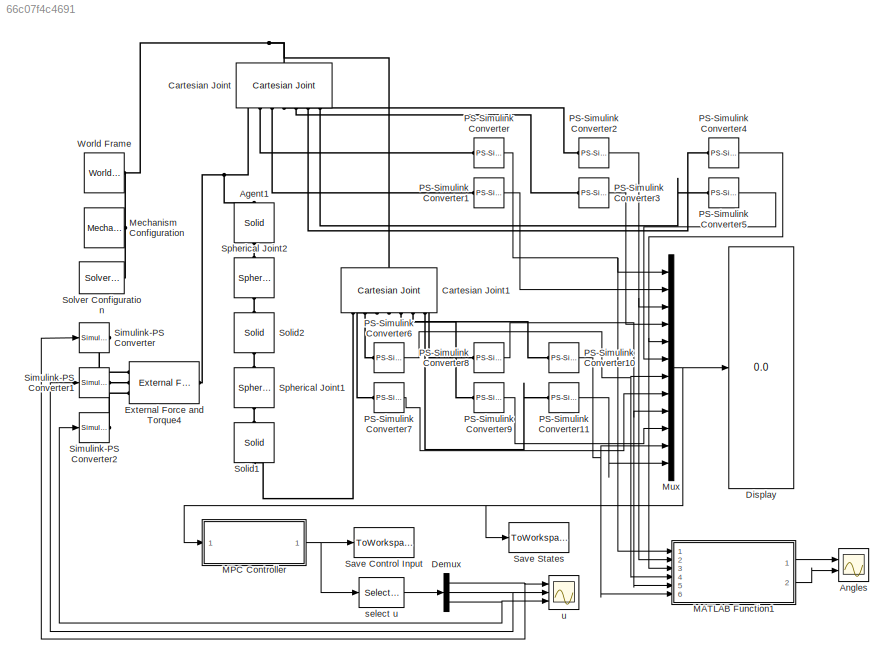
MODEL slx_66c07f4c4691
KIND model
CONFIG AbsTol = auto
CONFIG EnableMultiTasking = off
CONFIG FixedStep = tstep
CONFIG InitFcn = initMAX;
CONFIG MaxStep = auto
CONFIG MinStep = auto
CONFIG RelTol = 1e-3
CONFIG SampleTimeConstraint = Unconstrained
CONFIG Solver = ode23t
CONFIG SolverName = ode23t
CONFIG StartTime = 0.0
CONFIG StopFcn = plotMAX;
CONFIG StopTime = 5
BLOCK [Reference] Agent1  REF=sm_lib/Body Elements/Solid
  Ports = [0, 0, 0, 0, 0, 1, 1]
  SourceBlock = sm_lib/Body Elements/Solid
  SourceProductBaseCode = MS
  SourceProductName = Simscape Multibody
  SourceType = Solid
BLOCK [Scope] Angles
  NumInputPorts = 2
  Ports = [2]
  ScopeSpecificationString = Simulink.scopes.TimeScopeBlockCfg('CurrentConfiguration', extmgr.ConfigurationSet(extmgr.Configuration('Core','General UI',true),extmgr.Configuration('Core','Source UI',true),extmgr.Configuration('Sources','WiredSimulink',true,'DataLoggingVariableName','ScopeData1'),extmgr.Configuration('Visuals','Time Domain',true),extmgr.Configuration('Tools','Plot Navigation',true),extmgr.Configuration('Tools',...<+40ch>
BLOCK [Reference] Cartesian Joint  REF=sm_lib/Joints/Cartesian
Joint
  Ports = [0, 0, 0, 0, 0, 1, 7]
  SourceBlock = sm_lib/Joints/Cartesian\nJoint
  SourceProductBaseCode = MS
  SourceProductName = Simscape Multibody
  SourceType = Cartesian\nJoint
BLOCK [Reference] Cartesian Joint1  REF=sm_lib/Joints/Cartesian
Joint
  Ports = [0, 0, 0, 0, 0, 1, 7]
  SourceBlock = sm_lib/Joints/Cartesian\nJoint
  SourceProductBaseCode = MS
  SourceProductName = Simscape Multibody
  SourceType = Cartesian\nJoint
BLOCK [Demux] Demux
  DisplayOption = bar
  Outputs = 3
  Ports = [1, 3]
BLOCK [Display] Display
  Decimation = 1
  Ports = [1]
BLOCK [Reference] External Force and Torque4  REF=sm_lib/Forces and
Torques/External Force
and Torque
  Ports = [0, 0, 0, 0, 0, 3, 1]
  SourceBlock = sm_lib/Forces and\nTorques/External Force\nand Torque
  SourceProductBaseCode = MS
  SourceProductName = Simscape Multibody
  SourceType = External Force\nand Torque
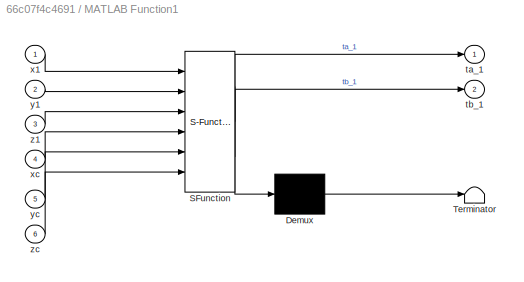
BLOCK [SubSystem] MATLAB Function1
  ErrorFcn = Stateflow.Translate.translate
  PermitHierarchicalResolution = ExplicitOnly
  Ports = [6, 2]
  RequestExecContextInheritance = off
  SFBlockType = MATLAB Function
  TreatAsAtomicUnit = on
  Variant = off
BLOCK [Demux] MATLAB Function1/ Demux 
  Outputs = 1
  Ports = [1, 1]
BLOCK [S-Function] MATLAB Function1/ SFunction 
  EnableBusSupport = on
  FunctionName = sf_sfun
  PortCounts = [6 3]
  Ports = [6, 3]
  SFcnIsStateOwnerBlock = off
  SFunctionDeploymentMode = off
  Tag = Stateflow S-Function MAXwSimscape 4
BLOCK [Terminator] MATLAB Function1/ Terminator 
BLOCK [Outport] MATLAB Function1/ta_1
  IconDisplay = Port number
BLOCK [Outport] MATLAB Function1/tb_1
  IconDisplay = Port number
  Port = 2
BLOCK [Inport] MATLAB Function1/x1
  IconDisplay = Port number
BLOCK [Inport] MATLAB Function1/xc
  IconDisplay = Port number
  Port = 4
BLOCK [Inport] MATLAB Function1/y1
  IconDisplay = Port number
  Port = 2
BLOCK [Inport] MATLAB Function1/yc
  IconDisplay = Port number
  Port = 5
BLOCK [Inport] MATLAB Function1/z1
  IconDisplay = Port number
  Port = 3
BLOCK [Inport] MATLAB Function1/zc
  IconDisplay = Port number
  Port = 6
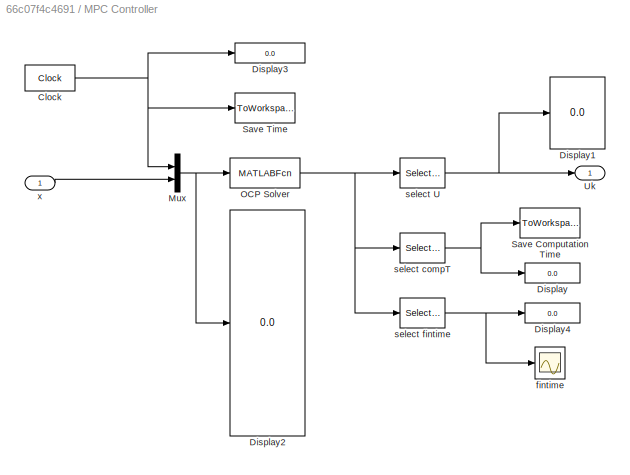
BLOCK [SubSystem] MPC Controller 
  Ports = [1, 1]
  RequestExecContextInheritance = off
  Variant = off
BLOCK [Clock] MPC Controller /Clock
  DisplayTime = on
BLOCK [Display] MPC Controller /Display
  Decimation = 1
  Ports = [1]
BLOCK [Display] MPC Controller /Display1
  Decimation = 1
  Ports = [1]
BLOCK [Display] MPC Controller /Display2
  Decimation = 1
  Ports = [1]
BLOCK [Display] MPC Controller /Display3
  Decimation = 1
  Ports = [1]
BLOCK [Display] MPC Controller /Display4
  Decimation = 1
  Ports = [1]
BLOCK [Mux] MPC Controller /Mux
  DisplayOption = bar
  Inputs = 2
  Ports = [2, 1]
BLOCK [MATLABFcn] MPC Controller /OCP Solver
  MATLABFcn = MAXSolver
  OutputDimensions = m+2
  Ports = [1, 1]
BLOCK [ToWorkspace] MPC Controller /Save Computation Time 
  FixptAsFi = on
  MaxDataPoints = inf
  Ports = [1]
  SampleTime = tstep
  Save2DSignal = 2-D array (concatenate along first dimension)
  VariableName = Comp_Time
BLOCK [ToWorkspace] MPC Controller /Save Time
  FixptAsFi = on
  MaxDataPoints = inf
  Ports = [1]
  SampleTime = -1
  Save2DSignal = 2-D array (concatenate along first dimension)
  VariableName = T
BLOCK [Outport] MPC Controller /Uk
  IconDisplay = Port number
BLOCK [Scope] MPC Controller /fintime
  NumInputPorts = 1
  Ports = [1]
  ScopeSpecificationString = Simulink.scopes.TimeScopeBlockCfg('CurrentConfiguration', extmgr.ConfigurationSet(extmgr.Configuration('Core','General UI',true),extmgr.Configuration('Core','Source UI',true),extmgr.Configuration('Sources','WiredSimulink',true,'DataLoggingVariableName','ScopeData1'),extmgr.Configuration('Visuals','Time Domain',true),extmgr.Configuration('Tools','Plot Navigation',true),extmgr.Configuration('Tools',...<+40ch>
BLOCK [Selector] MPC Controller /select U
  IndexOptions = Index vector (dialog)
  Indices = 3:m+2
  OutputSizes = 1
  Ports = [1, 1]
BLOCK [Selector] MPC Controller /select compT
  IndexOptions = Index vector (dialog)
  Indices = 2
  OutputSizes = 1
  Ports = [1, 1]
BLOCK [Selector] MPC Controller /select fintime
  IndexOptions = Index vector (dialog)
  Indices = 1
  OutputSizes = 1
  Ports = [1, 1]
BLOCK [Inport] MPC Controller /x
  IconDisplay = Port number
BLOCK [Reference] Mechanism Configuration  REF=sm_lib/Utilities/Mechanism
Configuration
  Ports = [0, 0, 0, 0, 0, 0, 1]
  SourceBlock = sm_lib/Utilities/Mechanism\nConfiguration
  SourceProductBaseCode = MS
  SourceProductName = Simscape Multibody
  SourceType = Mechanism\nConfiguration
BLOCK [Mux] Mux
  DisplayOption = bar
  Inputs = 12
  Ports = [12, 1]
BLOCK [Reference] PS-Simulink Converter  REF=nesl_utility/PS-Simulink
Converter
  Ports = [0, 1, 0, 0, 0, 1]
  SourceBlock = nesl_utility/PS-Simulink\nConverter
  SourceProductBaseCode = SS
  SourceProductName = Simscape
  SourceType = PS-Simulink\nConverter
BLOCK [Reference] PS-Simulink Converter1  REF=nesl_utility/PS-Simulink
Converter
  Ports = [0, 1, 0, 0, 0, 1]
  SourceBlock = nesl_utility/PS-Simulink\nConverter
  SourceProductBaseCode = SS
  SourceProductName = Simscape
  SourceType = PS-Simulink\nConverter
BLOCK [Reference] PS-Simulink Converter10  REF=nesl_utility/PS-Simulink
Converter
  Ports = [0, 1, 0, 0, 0, 1]
  SourceBlock = nesl_utility/PS-Simulink\nConverter
  SourceProductBaseCode = SS
  SourceProductName = Simscape
  SourceType = PS-Simulink\nConverter
BLOCK [Reference] PS-Simulink Converter11  REF=nesl_utility/PS-Simulink
Converter
  Ports = [0, 1, 0, 0, 0, 1]
  SourceBlock = nesl_utility/PS-Simulink\nConverter
  SourceProductBaseCode = SS
  SourceProductName = Simscape
  SourceType = PS-Simulink\nConverter
BLOCK [Reference] PS-Simulink Converter2  REF=nesl_utility/PS-Simulink
Converter
  Ports = [0, 1, 0, 0, 0, 1]
  SourceBlock = nesl_utility/PS-Simulink\nConverter
  SourceProductBaseCode = SS
  SourceProductName = Simscape
  SourceType = PS-Simulink\nConverter
BLOCK [Reference] PS-Simulink Converter3  REF=nesl_utility/PS-Simulink
Converter
  Ports = [0, 1, 0, 0, 0, 1]
  SourceBlock = nesl_utility/PS-Simulink\nConverter
  SourceProductBaseCode = SS
  SourceProductName = Simscape
  SourceType = PS-Simulink\nConverter
BLOCK [Reference] PS-Simulink Converter4  REF=nesl_utility/PS-Simulink
Converter
  Ports = [0, 1, 0, 0, 0, 1]
  SourceBlock = nesl_utility/PS-Simulink\nConverter
  SourceProductBaseCode = SS
  SourceProductName = Simscape
  SourceType = PS-Simulink\nConverter
BLOCK [Reference] PS-Simulink Converter5  REF=nesl_utility/PS-Simulink
Converter
  Ports = [0, 1, 0, 0, 0, 1]
  SourceBlock = nesl_utility/PS-Simulink\nConverter
  SourceProductBaseCode = SS
  SourceProductName = Simscape
  SourceType = PS-Simulink\nConverter
BLOCK [Reference] PS-Simulink Converter6  REF=nesl_utility/PS-Simulink
Converter
  Ports = [0, 1, 0, 0, 0, 1]
  SourceBlock = nesl_utility/PS-Simulink\nConverter
  SourceProductBaseCode = SS
  SourceProductName = Simscape
  SourceType = PS-Simulink\nConverter
BLOCK [Reference] PS-Simulink Converter7  REF=nesl_utility/PS-Simulink
Converter
  Ports = [0, 1, 0, 0, 0, 1]
  SourceBlock = nesl_utility/PS-Simulink\nConverter
  SourceProductBaseCode = SS
  SourceProductName = Simscape
  SourceType = PS-Simulink\nConverter
BLOCK [Reference] PS-Simulink Converter8  REF=nesl_utility/PS-Simulink
Converter
  Ports = [0, 1, 0, 0, 0, 1]
  SourceBlock = nesl_utility/PS-Simulink\nConverter
  SourceProductBaseCode = SS
  SourceProductName = Simscape
  SourceType = PS-Simulink\nConverter
BLOCK [Reference] PS-Simulink Converter9  REF=nesl_utility/PS-Simulink
Converter
  Ports = [0, 1, 0, 0, 0, 1]
  SourceBlock = nesl_utility/PS-Simulink\nConverter
  SourceProductBaseCode = SS
  SourceProductName = Simscape
  SourceType = PS-Simulink\nConverter
BLOCK [ToWorkspace] Save Control Input
  FixptAsFi = on
  MaxDataPoints = inf
  Ports = [1]
  SampleTime = -1
  Save2DSignal = 2-D array (concatenate along first dimension)
  VariableName = U
BLOCK [ToWorkspace] Save States
  FixptAsFi = on
  MaxDataPoints = inf
  Ports = [1]
  SampleTime = -1
  Save2DSignal = 3-D array (concatenate along third dimension)
  SaveFormat = Timeseries
  VariableName = X
BLOCK [Reference] Simulink-PS Converter  REF=nesl_utility/Simulink-PS
Converter
  Ports = [1, 0, 0, 0, 0, 0, 1]
  SourceBlock = nesl_utility/Simulink-PS\nConverter
  SourceProductBaseCode = SS
  SourceProductName = Simscape
  SourceType = Simulink-PS\nConverter
BLOCK [Reference] Simulink-PS Converter1  REF=nesl_utility/Simulink-PS
Converter
  Ports = [1, 0, 0, 0, 0, 0, 1]
  SourceBlock = nesl_utility/Simulink-PS\nConverter
  SourceProductBaseCode = SS
  SourceProductName = Simscape
  SourceType = Simulink-PS\nConverter
BLOCK [Reference] Simulink-PS Converter2  REF=nesl_utility/Simulink-PS
Converter
  Ports = [1, 0, 0, 0, 0, 0, 1]
  SourceBlock = nesl_utility/Simulink-PS\nConverter
  SourceProductBaseCode = SS
  SourceProductName = Simscape
  SourceType = Simulink-PS\nConverter
BLOCK [Reference] Solid1  REF=sm_lib/Body Elements/Solid
  Ports = [0, 0, 0, 0, 0, 1, 1]
  SourceBlock = sm_lib/Body Elements/Solid
  SourceProductBaseCode = MS
  SourceProductName = Simscape Multibody
  SourceType = Solid
BLOCK [Reference] Solid2  REF=sm_lib/Body Elements/Solid
  Ports = [0, 0, 0, 0, 0, 1, 1]
  SourceBlock = sm_lib/Body Elements/Solid
  SourceProductBaseCode = MS
  SourceProductName = Simscape Multibody
  SourceType = Solid
BLOCK [Reference] Solver Configuration  REF=nesl_utility/Solver
Configuration
  Ports = [0, 0, 0, 0, 0, 0, 1]
  SourceBlock = nesl_utility/Solver\nConfiguration
  SourceProductBaseCode = SS
  SourceProductName = Simscape
  SourceType = Solver\nConfiguration
BLOCK [Reference] Spherical Joint1  REF=sm_lib/Joints/Spherical
Joint
  Ports = [0, 0, 0, 0, 0, 1, 1]
  SourceBlock = sm_lib/Joints/Spherical\nJoint
  SourceProductBaseCode = MS
  SourceProductName = Simscape Multibody
  SourceType = Spherical\nJoint
BLOCK [Reference] Spherical Joint2  REF=sm_lib/Joints/Spherical
Joint
  Ports = [0, 0, 0, 0, 0, 1, 1]
  SourceBlock = sm_lib/Joints/Spherical\nJoint
  SourceProductBaseCode = MS
  SourceProductName = Simscape Multibody
  SourceType = Spherical\nJoint
BLOCK [Reference] World Frame  REF=sm_lib/Frames and
Transforms/World Frame
  Ports = [0, 0, 0, 0, 0, 0, 1]
  SourceBlock = sm_lib/Frames and\nTransforms/World Frame
  SourceProductBaseCode = MS
  SourceProductName = Simscape Multibody
  SourceType = World Frame
BLOCK [Selector] select u
  IndexOptions = Index vector (dialog)
  Indices = [1:3]
  OutputSizes = 1
  Ports = [1, 1]
BLOCK [Scope] u
  NumInputPorts = 3
  Ports = [3]
  ScopeSpecificationString = Simulink.scopes.TimeScopeBlockCfg('CurrentConfiguration', extmgr.ConfigurationSet(extmgr.Configuration('Core','General UI',true),extmgr.Configuration('Core','Source UI',true),extmgr.Configuration('Sources','WiredSimulink',true,'DataLoggingVariableName','ScopeData1'),extmgr.Configuration('Visuals','Time Domain',true,'SerializedDisplays',{struct('MinYLimReal','-1.11883','MaxYLimReal','8.95332','YLab...<+1484ch>
NET Demux:1 -> Simulink-PS Converter:1, u:1
NET Demux:2 -> Simulink-PS Converter1:1, u:2
NET Demux:3 -> Simulink-PS Converter2:1, u:3
LINE MATLAB Function1:1 -> Angles:1
LINE MATLAB Function1:2 -> Angles:2
NET MPC Controller /Clock:1 -> MPC Controller /Display3:1, MPC Controller /Mux:1, MPC Controller /Save Time:1
NET MPC Controller /Mux:1 -> MPC Controller /Display2:1, MPC Controller /OCP Solver:1
NET MPC Controller /OCP Solver:1 -> MPC Controller /select U:1, MPC Controller /select compT:1, MPC Controller /select fintime:1
NET MPC Controller /select U:1 -> MPC Controller /Display1:1, MPC Controller /Uk:1
NET MPC Controller /select compT:1 -> MPC Controller /Display:1, MPC Controller /Save Computation Time :1
NET MPC Controller /select fintime:1 -> MPC Controller /Display4:1, MPC Controller /fintime:1
LINE MPC Controller /x:1 -> MPC Controller /Mux:2
NET MPC Controller :1 -> Save Control Input:1, select u:1
NET Mux:1 -> Display:1, MPC Controller :1, Save States:1
NET PS-Simulink Converter10:1 -> MATLAB Function1:6, Mux:11
LINE PS-Simulink Converter11:1 -> Mux:12
LINE PS-Simulink Converter1:1 -> Mux:2
NET PS-Simulink Converter2:1 -> MATLAB Function1:2, Mux:3
LINE PS-Simulink Converter3:1 -> Mux:4
NET PS-Simulink Converter4:1 -> MATLAB Function1:3, Mux:5
LINE PS-Simulink Converter5:1 -> Mux:6
NET PS-Simulink Converter6:1 -> MATLAB Function1:4, Mux:7
LINE PS-Simulink Converter7:1 -> Mux:8
NET PS-Simulink Converter8:1 -> MATLAB Function1:5, Mux:9
LINE PS-Simulink Converter9:1 -> Mux:10
NET PS-Simulink Converter:1 -> MATLAB Function1:1, Mux:1
LINE select u:1 -> Demux:1
PLINE Agent1:LConn1 -- Spherical Joint2:LConn1
PNET net1: Agent1:RConn1 -- Cartesian Joint:RConn1 -- External Force and Torque4:RConn1
PNET net2: Cartesian Joint1:LConn1 -- Cartesian Joint:LConn1 -- Mechanism Configuration:RConn1 -- Solver Configuration:RConn1 -- World Frame:RConn1
PLINE Cartesian Joint1:RConn1 -- Solid1:RConn1
PLINE Cartesian Joint1:RConn2 -- PS-Simulink Converter6:LConn1
PLINE Cartesian Joint1:RConn3 -- PS-Simulink Converter7:LConn1
PLINE Cartesian Joint1:RConn4 -- PS-Simulink Converter8:LConn1
PLINE Cartesian Joint1:RConn5 -- PS-Simulink Converter9:LConn1
PLINE Cartesian Joint1:RConn6 -- PS-Simulink Converter10:LConn1
PLINE Cartesian Joint1:RConn7 -- PS-Simulink Converter11:LConn1
PLINE Cartesian Joint:RConn2 -- PS-Simulink Converter:LConn1
PLINE Cartesian Joint:RConn3 -- PS-Simulink Converter1:LConn1
PLINE Cartesian Joint:RConn4 -- PS-Simulink Converter2:LConn1
PLINE Cartesian Joint:RConn5 -- PS-Simulink Converter3:LConn1
PLINE Cartesian Joint:RConn6 -- PS-Simulink Converter4:LConn1
PLINE Cartesian Joint:RConn7 -- PS-Simulink Converter5:LConn1
PLINE External Force and Torque4:LConn1 -- Simulink-PS Converter:RConn1
PLINE External Force and Torque4:LConn2 -- Simulink-PS Converter1:RConn1
PLINE External Force and Torque4:LConn3 -- Simulink-PS Converter2:RConn1
PLINE Solid1:LConn1 -- Spherical Joint1:RConn1
PLINE Solid2:LConn1 -- Spherical Joint2:RConn1
PLINE Solid2:RConn1 -- Spherical Joint1:LConn1
note: NET lines group one-source signal fan-out (src -> all destinations, sorted); 1:1 wires keep LINE; PNET lines group multi-terminal physical nets as a canonical sorted terminal list (undirected conserving connections); 2-terminal nets keep the pairwise PLINE form
CHART MATLAB Function1 states=1 transitions=1
  STATE_LABEL 'eML_blk_kernel()'
  STATE_LABEL 'SCRIPT:\nfunction [ta_1,tb_1] = updateAngles(x1,y1,z1,xc,yc,zc)\n\nta_1 = (x1-xc)/(z1-zc);\ntb_1 = (y1-yc)/(z1-zc);'
